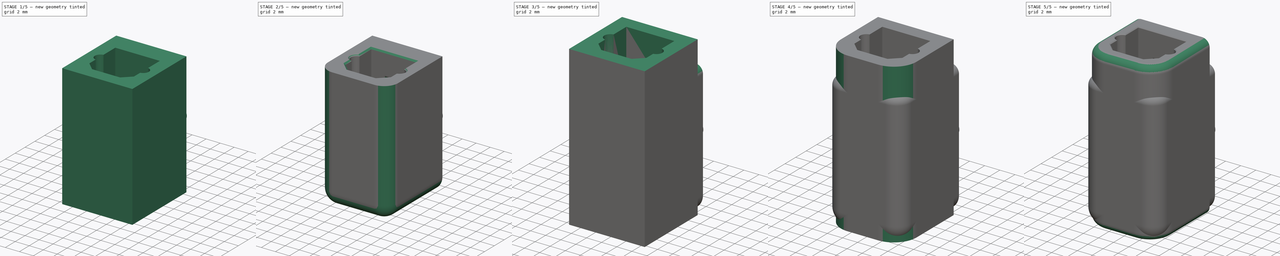
[diagram: build sequence overview — one tinted view per stage of 5, left to right]
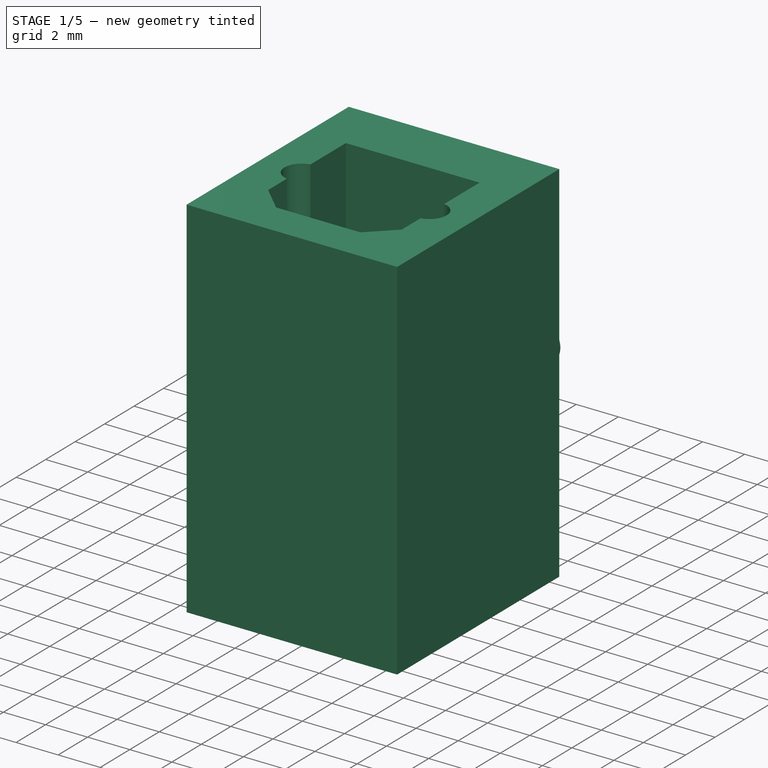
[diagram: stage 1 of 5 — iso view after this stage's code; geometry added in this stage tinted green]
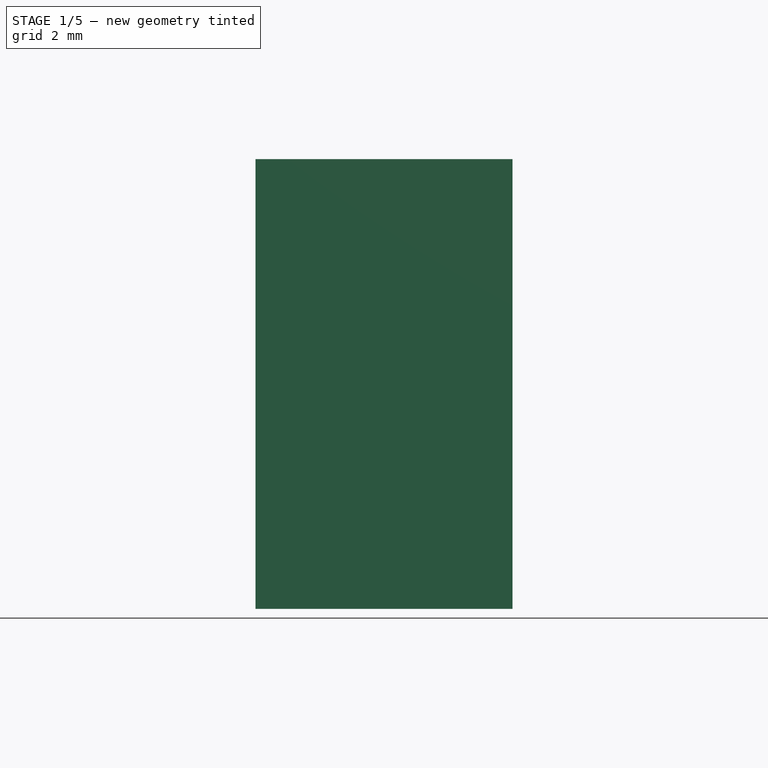
[diagram: stage 1 of 5 — front view after this stage's code; geometry added in this stage tinted green]
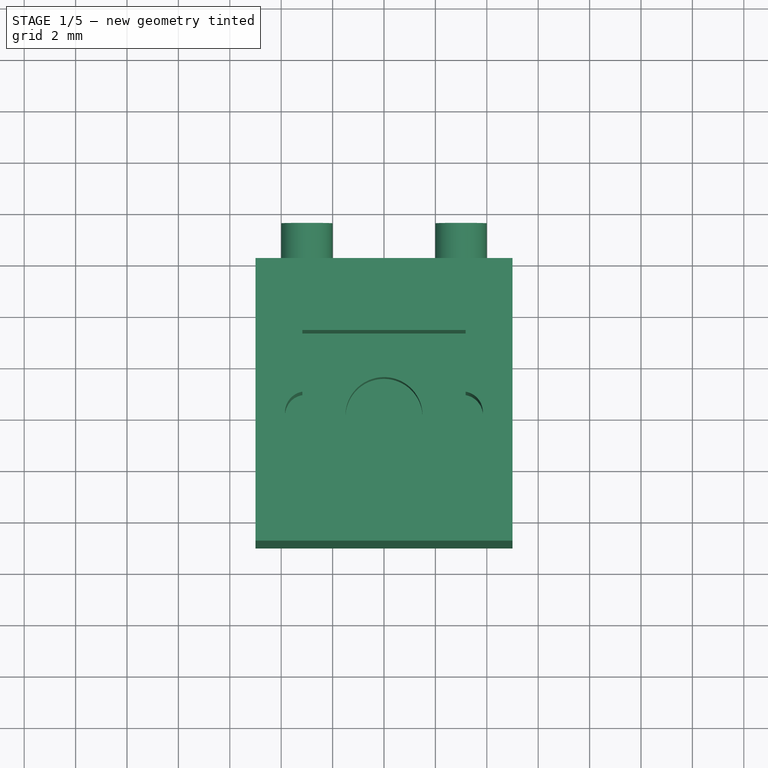
[diagram: stage 1 of 5 — top view after this stage's code; geometry added in this stage tinted green]
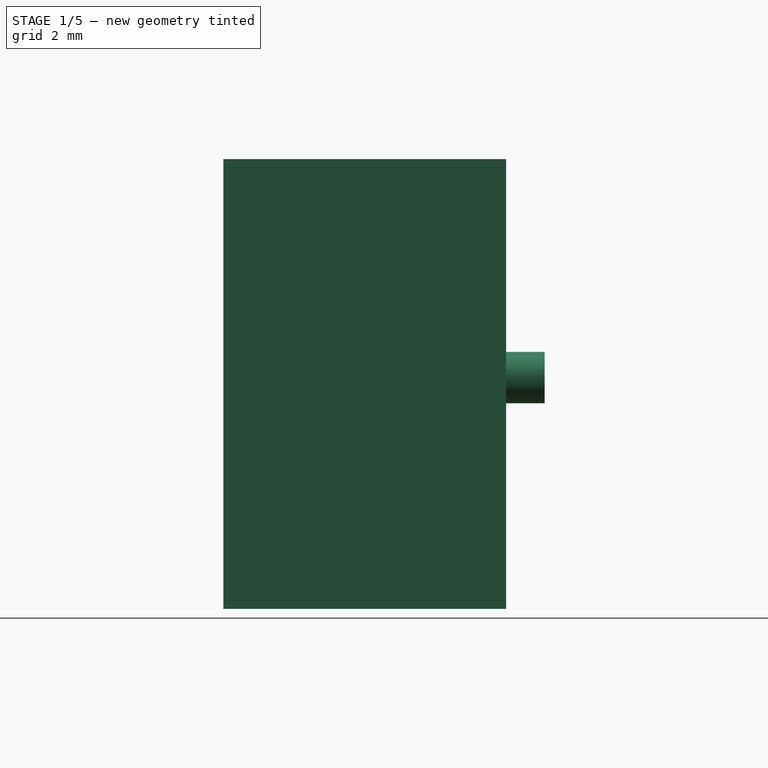
[diagram: stage 1 of 5 — right view after this stage's code; geometry added in this stage tinted green]
FCSTD DOCUMENT  (FreeCAD 1.0RUnknown)
Label: toslink-connector-opl530-led
License: All rights reserved
LicenseURL: https://en.wikipedia.org/wiki/All_rights_reserved
objects: Sketcher::SketchObject×14, PartDesign::Pocket×10, PartDesign::Fillet×7, PartDesign::Pad×4, PartDesign::Chamfer×3, PartDesign::Body×2
note: 102 computed .brp shape members not serialized (recipe doc carries the construction recipe); baked Part::Feature solids carry a one-line shape summary decoded from their .brp

FEATURE [Sketcher::SketchObject] Sketch001
  ArcFitTolerance = 1e-06
  AttachmentSupport = -> [XY_Plane001]
  FullyConstrained = true
  MakeInternals = false
  MapMode = 5
  sketch-geometry (4):
    g0: LineSegment StartX=-5 StartY=6 StartZ=0 EndX=-5 EndY=-5 EndZ=0
    g1: LineSegment StartX=-5 StartY=-5 StartZ=0 EndX=5 EndY=-5 EndZ=0
    g2: LineSegment StartX=5 StartY=-5 StartZ=0 EndX=5 EndY=6 EndZ=0
    g3: LineSegment StartX=5 StartY=6 StartZ=0 EndX=-5 EndY=6 EndZ=0
  constraints (11):
    c: Coincident(g0,g1)
    c: Coincident(g1,g2)
    c: Coincident(g2,g3)
    c: Coincident(g3,g0)
    c: Vertical(g0)
    c: Horizontal(g3)
    c: Symmetric(g1,g0,g-2)
    c: DistanceX(g1,g1) = 10
    c: Vertical(g2)
    c: Distance(g-1,g3) = 6
    c: Distance(g1,g-1) = 5
FEATURE [PartDesign::Pad] Pad
  Direction = (0,0,1)
  Length = 17.5
  Length2 = 10
  Profile = -> Sketch001
  ReferenceAxis = -> Sketch001 [N_Axis]
  Refine = true
  Suppressed = false
  Type = 0
FEATURE [Sketcher::SketchObject] Sketch002
  ArcFitTolerance = 1e-06
  AttachmentSupport = -> [Pad]
  FullyConstrained = true
  MakeInternals = false
  MapMode = 5
  Placement = pos=(0,0,17.5) rot=(0,0,1;0rad)
  sketch-geometry (12):
    g0: LineSegment StartX=3.175 StartY=3.19867 StartZ=0 EndX=-3.175 EndY=3.19867 EndZ=0
    g1: LineSegment StartX=-3.175 StartY=3.19867 StartZ=0 EndX=-3.175 EndY=0.798671 EndZ=0
    g2: LineSegment StartX=3.175 StartY=3.19867 StartZ=0 EndX=3.175 EndY=0.798671 EndZ=0
    g3: LineSegment StartX=3.175 StartY=-0.798671 StartZ=0 EndX=3.175 EndY=-2.07867 EndZ=0
    g4: LineSegment StartX=3.175 StartY=-2.07867 StartZ=0 EndX=2 EndY=-3.21133 EndZ=0
    g5: LineSegment StartX=2 StartY=-3.21133 StartZ=0 EndX=-2 EndY=-3.21133 EndZ=0
    g6: LineSegment StartX=-2 StartY=-3.21133 StartZ=0 EndX=-3.175 EndY=-2.07867 EndZ=0
    g7: LineSegment StartX=-3.175 StartY=-2.07867 StartZ=0 EndX=-3.175 EndY=-0.798671 EndZ=0
    g8: ArcOfCircle CenterX=-3.04 CenterY=-2.06965e-08 CenterZ=0 NormalX=0 NormalY=0 NormalZ=1 AngleXU=0 Radius=0.81 StartAngle=1.73824 EndAngle=4.54494
    g9: ArcOfCircle CenterX=3.04 CenterY=-2.06965e-08 CenterZ=0 NormalX=0 NormalY=0 NormalZ=1 AngleXU=0 Radius=0.81 StartAngle=4.87984 EndAngle=7.68653
    g10: LineSegment [constr] StartX=-3.175 StartY=-0.798671 StartZ=0 EndX=-3.175 EndY=0.798671 EndZ=0
    g11: LineSegment [constr] StartX=3.175 StartY=-0.798671 StartZ=0 EndX=3.175 EndY=0.798671 EndZ=0
  constraints (33):
    c: Coincident(g1,g0)
    c: Coincident(g2,g0)
    c: Coincident(g4,g3)
    c: Coincident(g5,g4)
    c: Coincident(g6,g5)
    c: Coincident(g7,g6)
    c: Coincident(g8,g1)
    c: Coincident(g8,g7)
    c: Coincident(g9,g2)
    c: Coincident(g9,g3)
    c: Equal(g8,g9)
    c: Equal(g1,g2)
    c: Equal(g3,g7)
    c: Vertical(g1)
    c: Vertical(g3)
    c: Vertical(g7)
    c: Equal(g6,g4)
    c: Symmetric(g4,g5,g-2)
    c: Symmetric(g0,g0,g-2)
    c: DistanceX(g0,g0) = 6.35
    c: DistanceX(g5,g5) = 4
    c: DistanceY(g4,g0) = 6.41
    c: Radius(g8) = 0.81
    c: DistanceY(g1,g1) = 2.4
    c: DistanceY(g7,g7) = 1.28
    c: Symmetric(g8,g9,g-2)
    c: Distance(g8,g-1) = 3.04
    c: DistanceX(g-1,g9) = 3.04
    c: Coincident(g10,g7)
    c: Coincident(g10,g1)
    c: Vertical(g10)
    c: Coincident(g11,g3)
    c: Coincident(g11,g2)
FEATURE [PartDesign::Pocket] Pocket
  BaseFeature = -> Pad
  Direction = (0,0,-1)
  Length = 7.7
  Length2 = 5
  Profile = -> Sketch002
  ReferenceAxis = -> Sketch002 [N_Axis]
  Refine = true
  Suppressed = false
  Type = 0
FEATURE [Sketcher::SketchObject] Sketch003
  ArcFitTolerance = 1e-06
  AttachmentSupport = -> [Pocket]
  FullyConstrained = true
  MakeInternals = false
  MapMode = 5
  Placement = pos=(0,0,9.8) rot=(0,0,1;0rad)
  sketch-geometry (1):
    g0: Circle CenterX=0 CenterY=0 CenterZ=0 NormalX=0 NormalY=0 NormalZ=1 AngleXU=0 Radius=1.5
  constraints (2):
    c: Diameter(g0) = 3
    c: Coincident(g0,g-1)
FEATURE [PartDesign::Pocket] Pocket001
  BaseFeature = -> Pocket
  Direction = (0,0,-1)
  Length = 4
  Length2 = 5
  Profile = -> Sketch003
  ReferenceAxis = -> Sketch003 [N_Axis]
  Refine = true
  Suppressed = false
  Type = 0
FEATURE [Sketcher::SketchObject] Sketch004
  ArcFitTolerance = 1e-06
  AttachmentSupport = -> [Pocket001]
  ExternalGeometry = -> [Pocket001]
  FullyConstrained = true
  MakeInternals = false
  MapMode = 5
  Placement = pos=(0,6,0) rot=(0,0.707107,0.707107;3.14159rad)
  sketch-geometry (9):
    g0: LineSegment StartX=-2.5 StartY=3.2 StartZ=0 EndX=2.5 EndY=3.2 EndZ=0
    g1: LineSegment StartX=2.5 StartY=3.2 StartZ=0 EndX=2.5 EndY=5 EndZ=0
    g2: LineSegment StartX=2.5 StartY=5 StartZ=0 EndX=1.5 EndY=5 EndZ=0
    g3: LineSegment StartX=-2.5 StartY=5 StartZ=0 EndX=-2.5 EndY=3.2 EndZ=0
    g4: GeomPoint [constr] X=0 Y=4.1 Z=0
    g5: LineSegment StartX=-1.5 StartY=5 StartZ=0 EndX=-2.5 EndY=5 EndZ=0
    g6: LineSegment StartX=1.5 StartY=5 StartZ=0 EndX=1.5 EndY=5.8 EndZ=0
    g7: LineSegment StartX=1.5 StartY=5.8 StartZ=0 EndX=-1.5 EndY=5.8 EndZ=0
    g8: LineSegment StartX=-1.5 StartY=5.8 StartZ=0 EndX=-1.5 EndY=5 EndZ=0
  constraints (25):
    c: Coincident(g0,g1)
    c: Coincident(g1,g2)
    c: Coincident(g5,g3)
    c: Coincident(g3,g0)
    c: Horizontal(g0)
    c: Horizontal(g2)
    c: Vertical(g1)
    c: Vertical(g3)
    c: Symmetric(g2,g0,g4)
    c: PointOnObject(g4,g-2)
    c: DistanceY(g1,g1) = 1.8
    c: DistanceX(g0,g0) = 5
    c: Horizontal(g5)
    c: Coincident(g6,g7)
    c: Coincident(g7,g8)
    c: Horizontal(g7)
    c: Vertical(g6)
    c: Vertical(g8)
    c: PointOnObject(g6,g-3)
    c: Coincident(g6,g2)
    c: Coincident(g8,g5)
    c: Equal(g1,g3)
    c: Equal(g2,g5)
    c: Distance(g0,g7) = 2.6
    c: Equal(g7,g-3)
FEATURE [PartDesign::Pocket] Pocket002
  BaseFeature = -> Pocket001
  Direction = (0,-1,2e-16)
  Length = 7.5
  Length2 = 5
  Profile = -> Sketch004
  ReferenceAxis = -> Sketch004 [N_Axis]
  Refine = true
  Suppressed = false
  Type = 0
FEATURE [Sketcher::SketchObject] Sketch005
  ArcFitTolerance = 1e-06
  AttachmentSupport = -> [Pocket002]
  FullyConstrained = true
  MakeInternals = false
  MapMode = 5
  Placement = pos=(0,6,0) rot=(0,0.707107,0.707107;3.14159rad)
  sketch-geometry (2):
    g0: Circle CenterX=-3 CenterY=9 CenterZ=0 NormalX=0 NormalY=0 NormalZ=1 AngleXU=0 Radius=1
    g1: Circle CenterX=3 CenterY=9 CenterZ=0 NormalX=0 NormalY=0 NormalZ=1 AngleXU=0 Radius=1
  constraints (5):
    c: Diameter(g0) = 2
    c: Diameter(g1) = 2
    c: Symmetric(g1,g0,g-2)
    c: Distance(g1,g-2) = 3
    c: DistanceY(g-1,g1) = 9
FEATURE [PartDesign::Pad] Pad001
  BaseFeature = -> Pocket002
  Direction = (0,1,-2e-16)
  Length = 1.5
  Length2 = 10
  Profile = -> Sketch005
  ReferenceAxis = -> Sketch005 [N_Axis]
  Refine = true
  Suppressed = false
  Type = 0
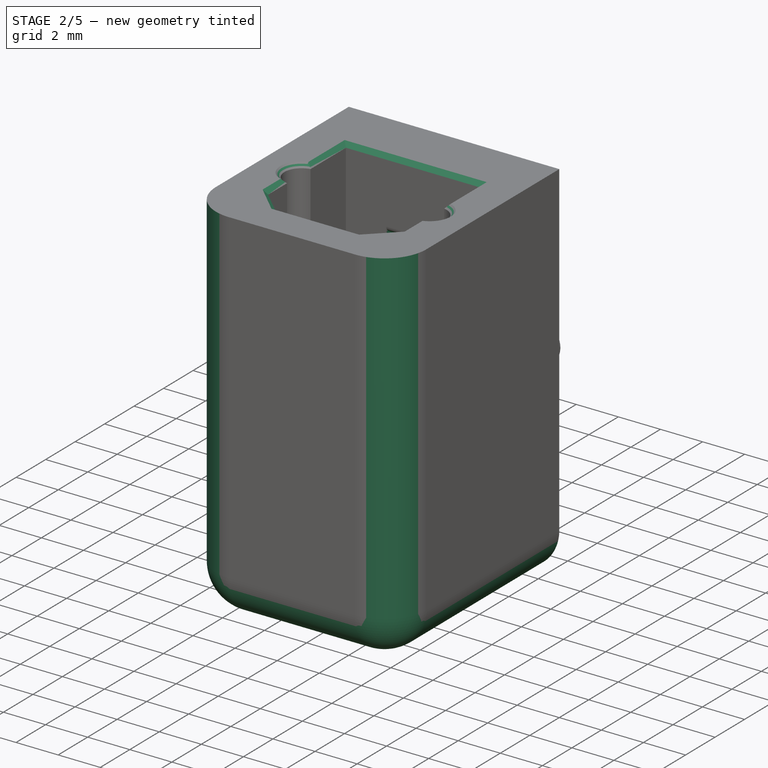
[diagram: stage 2 of 5 — iso view after this stage's code; geometry added in this stage tinted green]
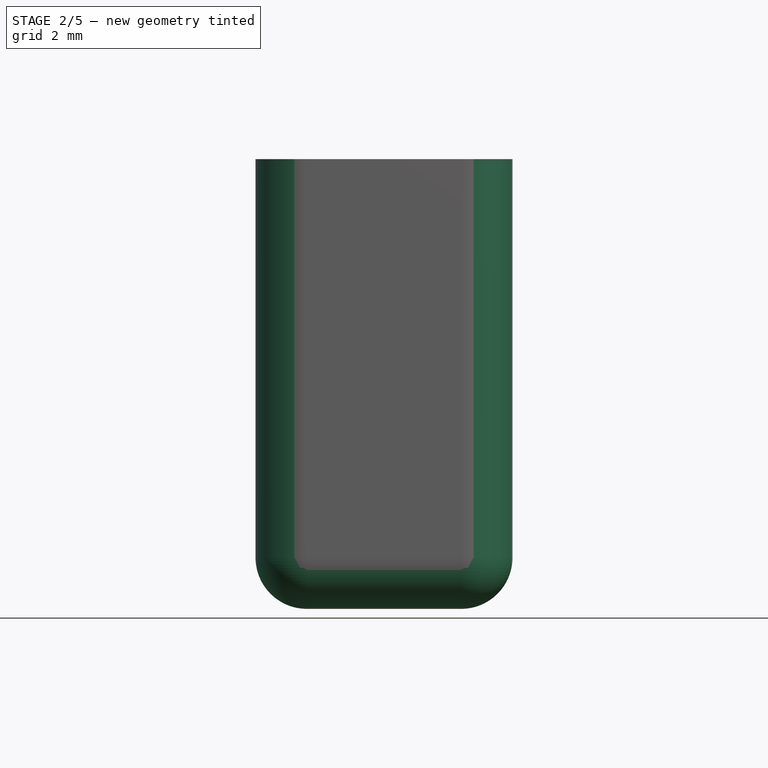
[diagram: stage 2 of 5 — front view after this stage's code; geometry added in this stage tinted green]
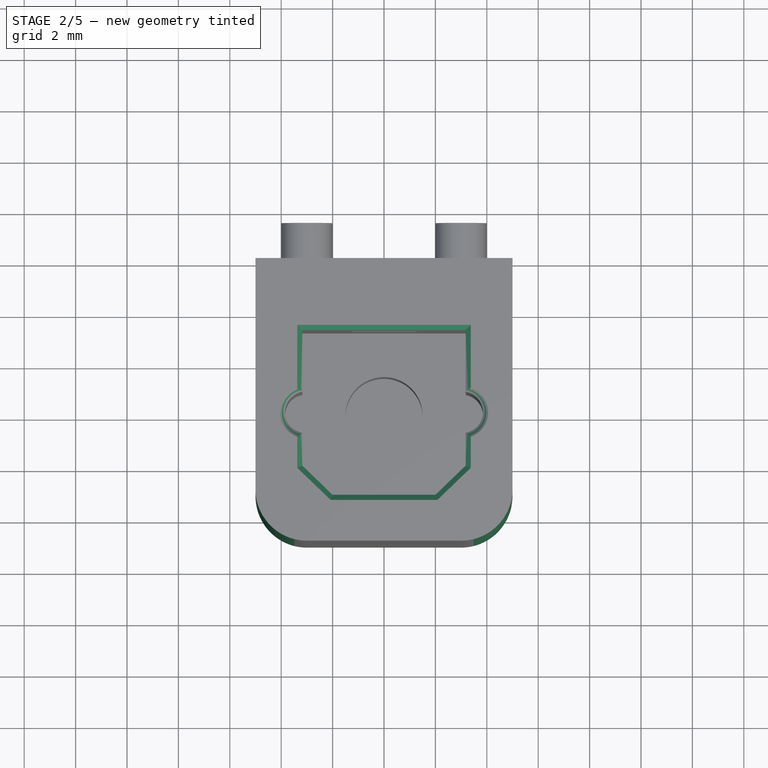
[diagram: stage 2 of 5 — top view after this stage's code; geometry added in this stage tinted green]
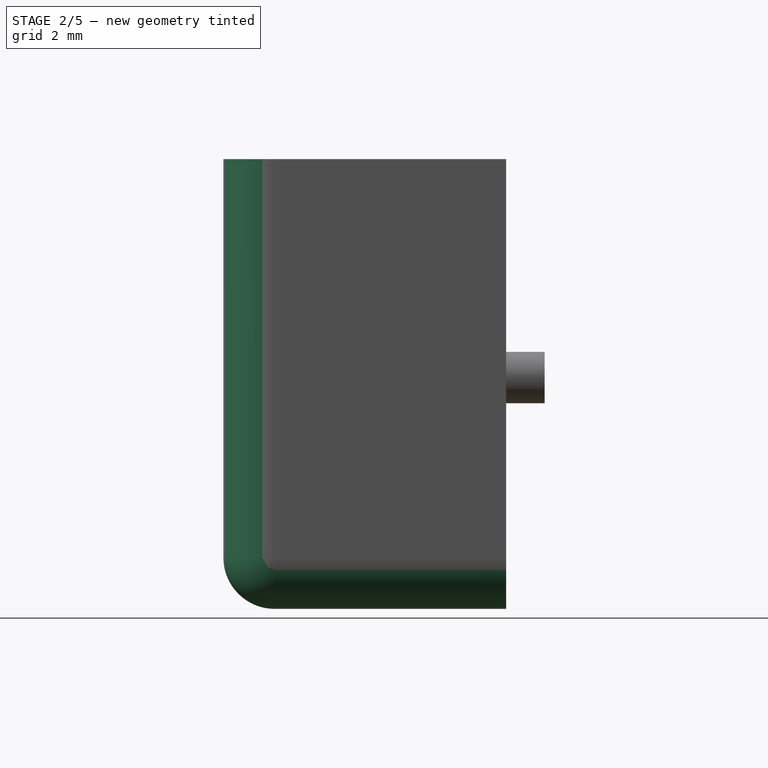
[diagram: stage 2 of 5 — right view after this stage's code; geometry added in this stage tinted green]
FEATURE [PartDesign::Fillet] Fillet
  Base = -> Pad001 [Edge2,Edge18,Edge19,Edge3,Edge21]
  BaseFeature = -> Pad001
  Radius = 2
  Refine = true
  SupportTransform = false
  Suppressed = false
  UseAllEdges = false
FEATURE [PartDesign::Body] Body002  label="Transmitter"
  AllowCompound = false
  Group = -> [Sketch006,Pad002,Sketch007,Pocket003,Sketch008,Pocket004,Sketch010,Pad003,Sketch,Pocket005,Fillet001,Chamfer,Sketch013,Pocket006,Sketch015,Pocket007,Fillet002,Chamfer002,Fillet003]
  Origin = -> Origin002
  Tip = -> Fillet003
FEATURE [Sketcher::SketchObject] Sketch016
  ArcFitTolerance = 1e-06
  FullyConstrained = true
  MakeInternals = false
  MapMode = 5
  Placement = pos=(0,3.19867,0) rot=(1,0,0;1.5708rad)
  sketch-geometry (4):
    g0: LineSegment StartX=-1.25 StartY=14.15 StartZ=0 EndX=-1.25 EndY=13.15 EndZ=0
    g1: LineSegment StartX=-1.25 StartY=13.15 StartZ=0 EndX=1.25 EndY=13.15 EndZ=0
    g2: LineSegment StartX=1.25 StartY=13.15 StartZ=0 EndX=1.25 EndY=14.15 EndZ=0
    g3: LineSegment StartX=1.25 StartY=14.15 StartZ=0 EndX=-1.25 EndY=14.15 EndZ=0
  constraints (11):
    c: Coincident(g0,g1)
    c: Coincident(g1,g2)
    c: Coincident(g2,g3)
    c: Coincident(g3,g0)
    c: Vertical(g0)
    c: Vertical(g2)
    c: Horizontal(g1)
    c: Symmetric(g2,g0,g-2)
    c: DistanceY(g2,g2) = 1
    c: DistanceX(g3,g3) = 2.5
    c: Distance(g-3,g1) = 3.35
FEATURE [PartDesign::Pocket] Pocket008
  BaseFeature = -> Fillet
  Direction = (0,1,-2e-16)
  Length = 0.5
  Length2 = 5
  Profile = -> Sketch016
  ReferenceAxis = -> Sketch016 [N_Axis]
  Refine = true
  Suppressed = false
  Type = 0
FEATURE [Sketcher::SketchObject] Sketch017
  ArcFitTolerance = 1e-06
  AttachmentSupport = -> [Pocket008]
  ExternalGeometry = -> [Pocket008]
  FullyConstrained = true
  MakeInternals = false
  MapMode = 5
  Placement = pos=(0,-3.21133,0) rot=(0,0.707107,0.707107;3.14159rad)
  sketch-geometry (4):
    g0: LineSegment StartX=-1.25 StartY=14.15 StartZ=0 EndX=-1.25 EndY=13.15 EndZ=0
    g1: LineSegment StartX=-1.25 StartY=13.15 StartZ=0 EndX=1.25 EndY=13.15 EndZ=0
    g2: LineSegment StartX=1.25 StartY=13.15 StartZ=0 EndX=1.25 EndY=14.15 EndZ=0
    g3: LineSegment StartX=1.25 StartY=14.15 StartZ=0 EndX=-1.25 EndY=14.15 EndZ=0
  constraints (10):
    c: Coincident(g0,g1)
    c: Coincident(g1,g2)
    c: Coincident(g2,g3)
    c: Coincident(g3,g0)
    c: Vertical(g0)
    c: Vertical(g2)
    c: Horizontal(g1)
    c: Horizontal(g3)
    c: Coincident(g0,g-6)
    c: Coincident(g1,g-5)
FEATURE [PartDesign::Pocket] Pocket009
  BaseFeature = -> Pocket008
  Direction = (0,-1,2e-16)
  Length = 0.5
  Length2 = 5
  Profile = -> Sketch017
  ReferenceAxis = -> Sketch017 [N_Axis]
  Refine = true
  Suppressed = false
  Type = 0
FEATURE [PartDesign::Fillet] Fillet004
  Base = -> Pocket009 [Edge94,Edge92,Edge79,Edge77]
  BaseFeature = -> Pocket009
  Radius = 0.3
  Refine = true
  SupportTransform = false
  Suppressed = false
  UseAllEdges = false
FEATURE [PartDesign::Chamfer] Chamfer003
  Angle = 45
  Base = -> Fillet004 [Edge40,Edge39,Edge38,Edge37,Edge36,Edge35,Edge10,Edge26,Edge34,Edge41]
  BaseFeature = -> Fillet004
  ChamferType = 0
  FlipDirection = false
  Refine = true
  Size = 0.2
  Size2 = 1
  SupportTransform = false
  Suppressed = false
  UseAllEdges = false
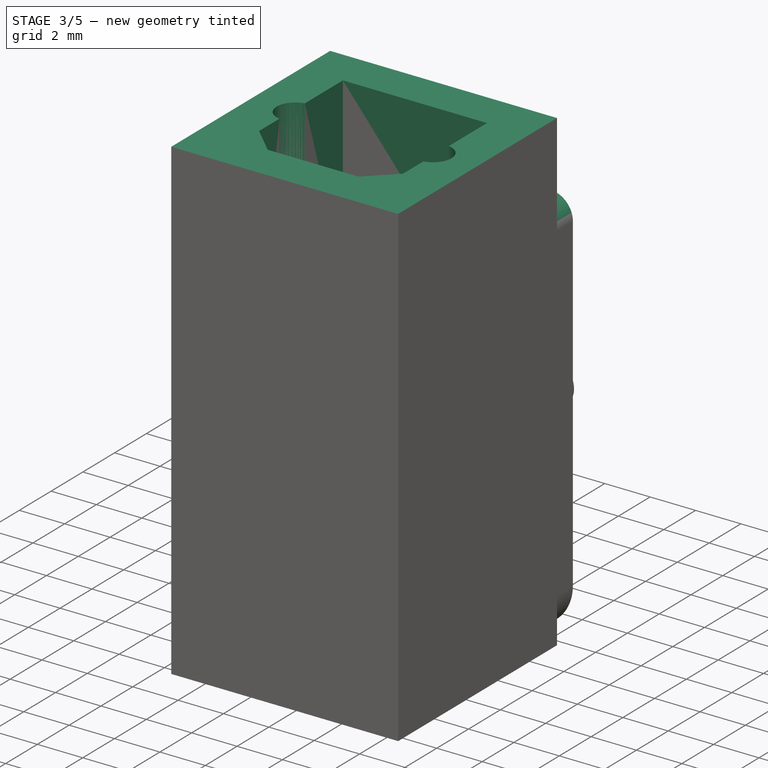
[diagram: stage 3 of 5 — iso view after this stage's code; geometry added in this stage tinted green]
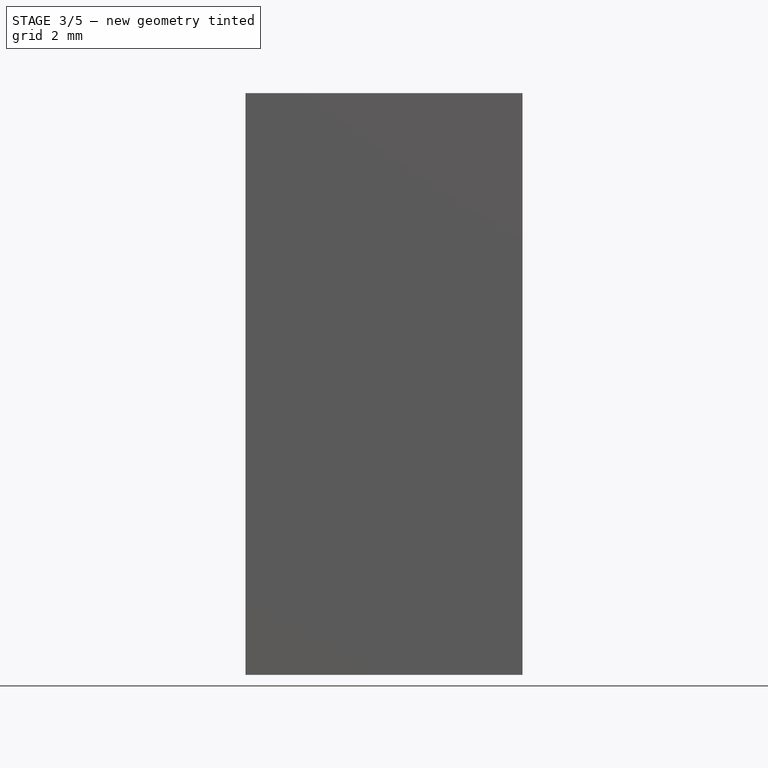
[diagram: stage 3 of 5 — front view after this stage's code; geometry added in this stage tinted green]
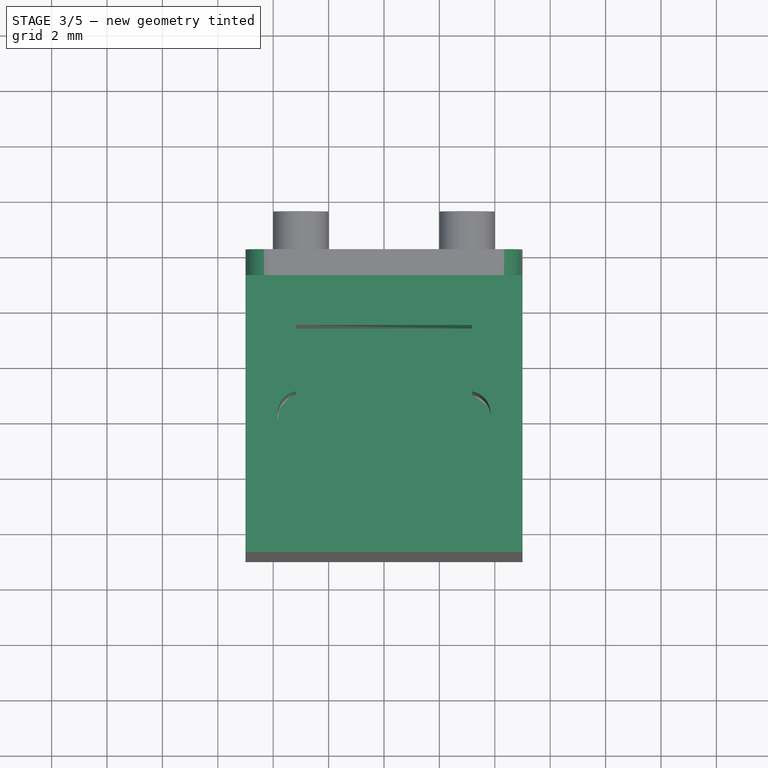
[diagram: stage 3 of 5 — top view after this stage's code; geometry added in this stage tinted green]
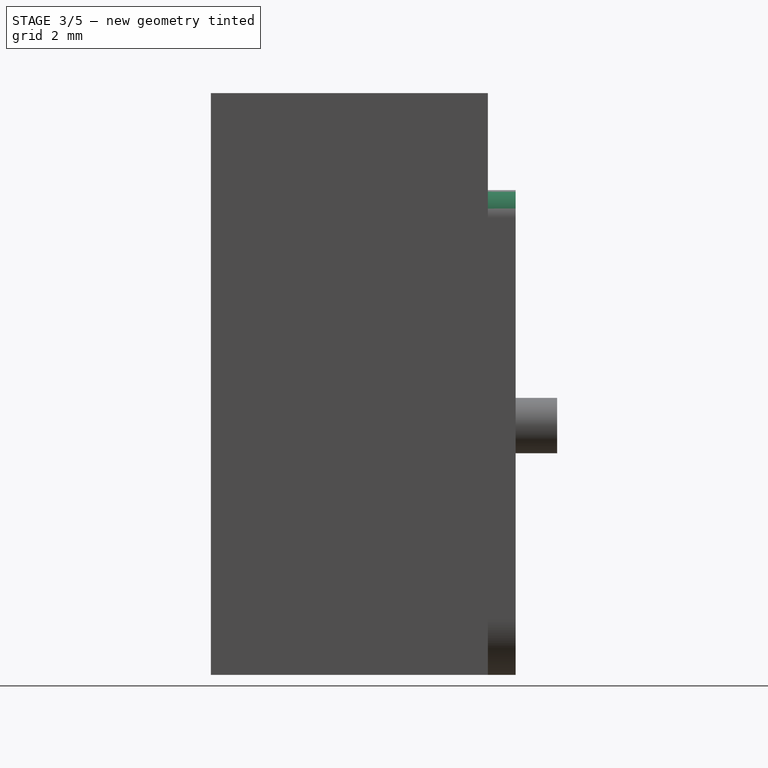
[diagram: stage 3 of 5 — right view after this stage's code; geometry added in this stage tinted green]
FEATURE [Sketcher::SketchObject] Sketch006
  ArcFitTolerance = 1e-06
  AttachmentSupport = -> [XY_Plane002]
  FullyConstrained = true
  MakeInternals = false
  MapMode = 5
  sketch-geometry (4):
    g0: LineSegment StartX=-5 StartY=5 StartZ=0 EndX=-5 EndY=-5 EndZ=0
    g1: LineSegment StartX=-5 StartY=-5 StartZ=0 EndX=5 EndY=-5 EndZ=0
    g2: LineSegment StartX=5 StartY=-5 StartZ=0 EndX=5 EndY=5 EndZ=0
    g3: LineSegment StartX=5 StartY=5 StartZ=0 EndX=-5 EndY=5 EndZ=0
  constraints (10):
    c: Coincident(g0,g1)
    c: Coincident(g1,g2)
    c: Coincident(g2,g3)
    c: Coincident(g3,g0)
    c: Vertical(g0)
    c: Horizontal(g3)
    c: Symmetric(g1,g0,g-2)
    c: Symmetric(g2,g1,g-1)
    c: DistanceX(g1,g1) = 10
    c: DistanceY(g2,g2) = 10
FEATURE [PartDesign::Pad] Pad002
  Direction = (0,0,1)
  Length = 21
  Length2 = 10
  Profile = -> Sketch006
  ReferenceAxis = -> Sketch006 [N_Axis]
  Refine = true
  Suppressed = false
  Type = 0
FEATURE [Sketcher::SketchObject] Sketch007
  ArcFitTolerance = 1e-06
  AttachmentSupport = -> [Pad002]
  FullyConstrained = true
  MakeInternals = false
  MapMode = 5
  Placement = pos=(0,0,21) rot=(0,0,1;0rad)
  sketch-geometry (12):
    g0: LineSegment StartX=3.175 StartY=3.19867 StartZ=0 EndX=-3.175 EndY=3.19867 EndZ=0
    g1: LineSegment StartX=-3.175 StartY=3.19867 StartZ=0 EndX=-3.175 EndY=0.798671 EndZ=0
    g2: LineSegment StartX=3.175 StartY=3.19867 StartZ=0 EndX=3.175 EndY=0.798671 EndZ=0
    g3: LineSegment StartX=3.175 StartY=-0.798671 StartZ=0 EndX=3.175 EndY=-2.07867 EndZ=0
    g4: LineSegment StartX=3.175 StartY=-2.07867 StartZ=0 EndX=2 EndY=-3.21133 EndZ=0
    g5: LineSegment StartX=2 StartY=-3.21133 StartZ=0 EndX=-2 EndY=-3.21133 EndZ=0
    g6: LineSegment StartX=-2 StartY=-3.21133 StartZ=0 EndX=-3.175 EndY=-2.07867 EndZ=0
    g7: LineSegment StartX=-3.175 StartY=-2.07867 StartZ=0 EndX=-3.175 EndY=-0.798671 EndZ=0
    g8: ArcOfCircle CenterX=-3.04 CenterY=-2.06965e-08 CenterZ=0 NormalX=0 NormalY=0 NormalZ=1 AngleXU=0 Radius=0.81 StartAngle=1.73824 EndAngle=4.54494
    g9: ArcOfCircle CenterX=3.04 CenterY=-2.06965e-08 CenterZ=0 NormalX=0 NormalY=0 NormalZ=1 AngleXU=0 Radius=0.81 StartAngle=4.87984 EndAngle=7.68653
    g10: LineSegment [constr] StartX=-3.175 StartY=-0.798671 StartZ=0 EndX=-3.175 EndY=0.798671 EndZ=0
    g11: LineSegment [constr] StartX=3.175 StartY=-0.798671 StartZ=0 EndX=3.175 EndY=0.798671 EndZ=0
  constraints (33):
    c: Coincident(g1,g0)
    c: Coincident(g2,g0)
    c: Coincident(g4,g3)
    c: Coincident(g5,g4)
    c: Coincident(g6,g5)
    c: Coincident(g7,g6)
    c: Coincident(g8,g1)
    c: Coincident(g8,g7)
    c: Coincident(g9,g2)
    c: Coincident(g9,g3)
    c: Equal(g8,g9)
    c: Equal(g1,g2)
    c: Equal(g3,g7)
    c: Vertical(g1)
    c: Vertical(g3)
    c: Vertical(g7)
    c: Equal(g6,g4)
    c: Symmetric(g4,g5,g-2)
    c: Symmetric(g0,g0,g-2)
    c: DistanceX(g0,g0) = 6.35
    c: DistanceX(g5,g5) = 4
    c: DistanceY(g4,g0) = 6.41
    c: Radius(g8) = 0.81
    c: DistanceY(g1,g1) = 2.4
    c: DistanceY(g7,g7) = 1.28
    c: Symmetric(g8,g9,g-2)
    c: Distance(g8,g-1) = 3.04
    c: DistanceX(g-1,g9) = 3.04
    c: Coincident(g10,g7)
    c: Coincident(g10,g1)
    c: Vertical(g10)
    c: Coincident(g11,g3)
    c: Coincident(g11,g2)
FEATURE [PartDesign::Pocket] Pocket003
  BaseFeature = -> Pad002
  Direction = (0,0,-1)
  Length = 7.7
  Length2 = 5
  Profile = -> Sketch007
  ReferenceAxis = -> Sketch007 [N_Axis]
  Refine = true
  Suppressed = false
  Type = 0
FEATURE [PartDesign::Fillet] Fillet005
  Base = -> Chamfer003 [Edge54,Edge55,Edge57,Edge59,Edge58]
  BaseFeature = -> Chamfer003
  Radius = 1
  Refine = true
  SupportTransform = false
  Suppressed = false
  UseAllEdges = false
FEATURE [PartDesign::Fillet] Fillet006
  Base = -> Fillet005 [Edge143,Edge140,Edge141,Edge145,Edge150,Edge154]
  BaseFeature = -> Fillet005
  Radius = 0.25
  Refine = true
  SupportTransform = false
  Suppressed = false
  UseAllEdges = false
FEATURE [PartDesign::Body] Body001  label="Receiver"
  AllowCompound = false
  Group = -> [Sketch001,Pad,Sketch002,Pocket,Sketch003,Pocket001,Sketch004,Pocket002,Sketch005,Pad001,Fillet,Sketch016,Pocket008,Sketch017,Pocket009,Fillet004,Chamfer003,Fillet005,Fillet006]
  Origin = -> Origin001
  Tip = -> Fillet006
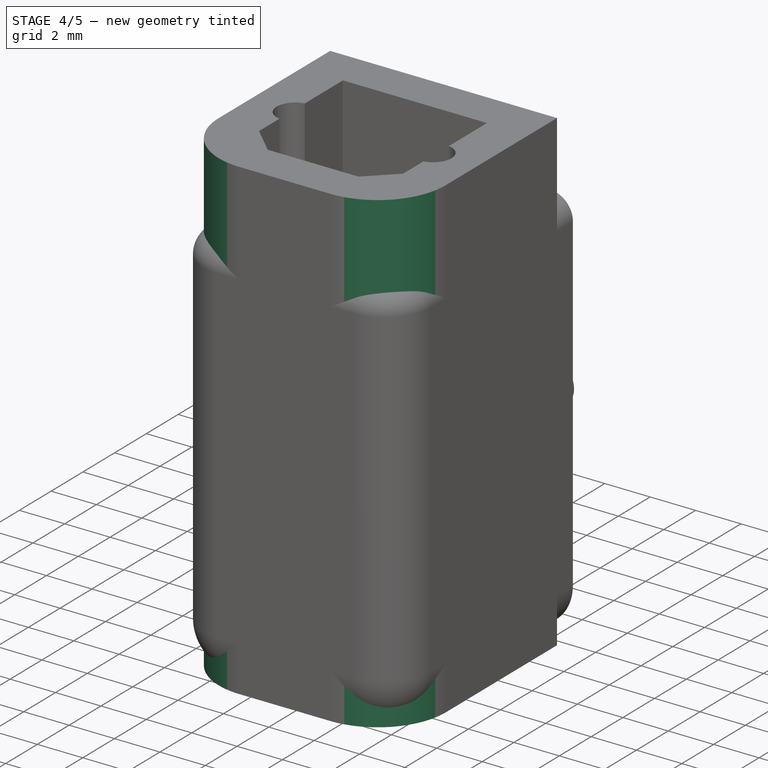
[diagram: stage 4 of 5 — iso view after this stage's code; geometry added in this stage tinted green]
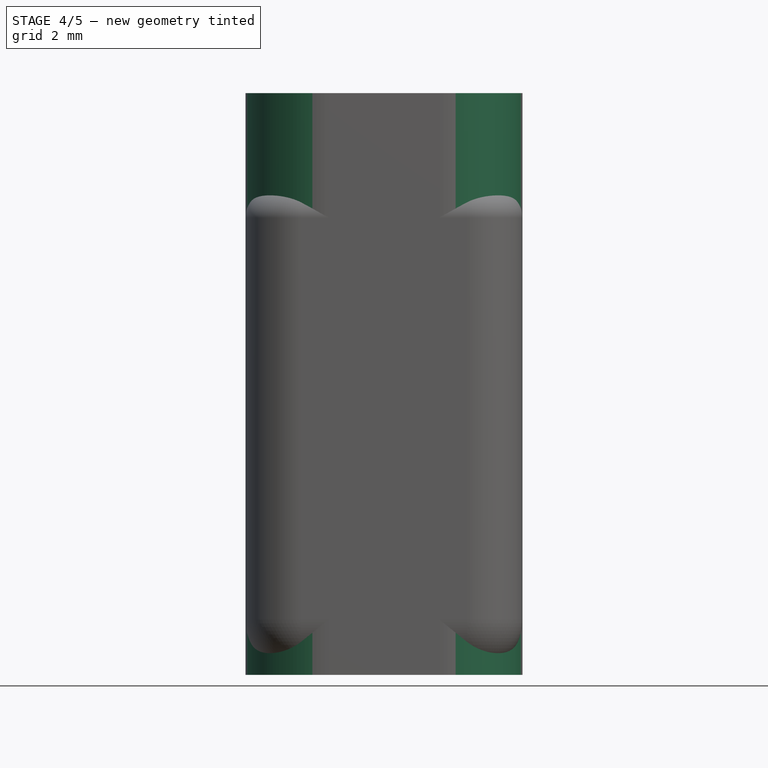
[diagram: stage 4 of 5 — front view after this stage's code; geometry added in this stage tinted green]
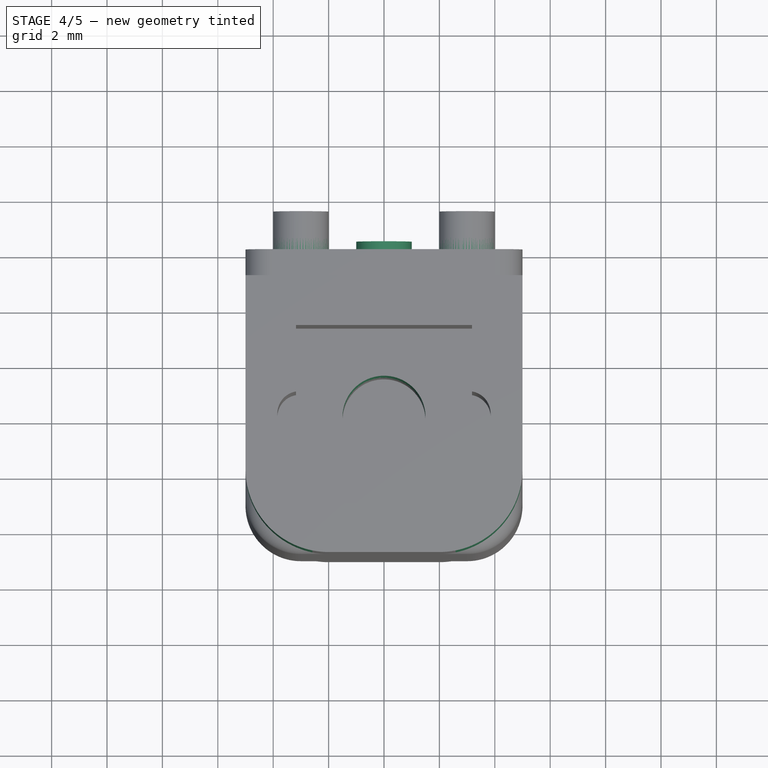
[diagram: stage 4 of 5 — top view after this stage's code; geometry added in this stage tinted green]
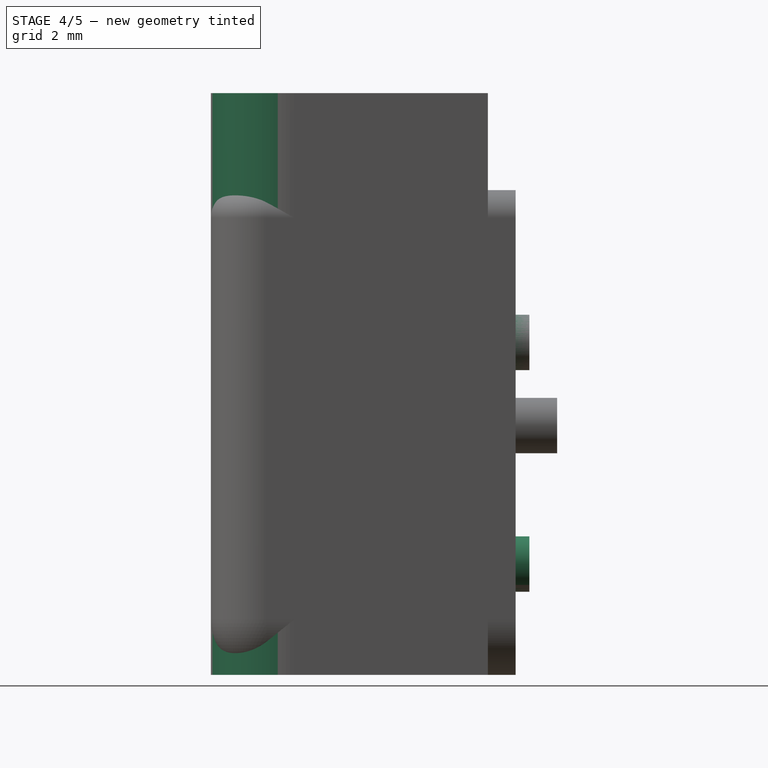
[diagram: stage 4 of 5 — right view after this stage's code; geometry added in this stage tinted green]
FEATURE [Sketcher::SketchObject] Sketch008
  ArcFitTolerance = 1e-06
  AttachmentSupport = -> [Pocket003]
  FullyConstrained = true
  MakeInternals = false
  MapMode = 5
  Placement = pos=(0,0,13.3) rot=(0,0,1;0rad)
  sketch-geometry (1):
    g0: Circle CenterX=0 CenterY=0 CenterZ=0 NormalX=0 NormalY=0 NormalZ=1 AngleXU=0 Radius=1.5
  constraints (2):
    c: Diameter(g0) = 3
    c: Coincident(g0,g-1)
FEATURE [PartDesign::Pocket] Pocket004
  BaseFeature = -> Pocket003
  Direction = (0,0,-1)
  Length = 5
  Length2 = 5
  Profile = -> Sketch008
  ReferenceAxis = -> Sketch008 [N_Axis]
  Refine = true
  Suppressed = false
  Type = 0
FEATURE [Sketcher::SketchObject] Sketch010
  ArcFitTolerance = 1e-06
  FullyConstrained = true
  MakeInternals = false
  MapMode = 5
  Placement = pos=(0,5,0) rot=(0,0.707107,0.707107;3.14159rad)
  sketch-geometry (3):
    g0: Circle CenterX=-3 CenterY=12 CenterZ=0 NormalX=0 NormalY=0 NormalZ=1 AngleXU=0 Radius=1
    g1: Circle CenterX=3 CenterY=12 CenterZ=0 NormalX=0 NormalY=0 NormalZ=1 AngleXU=0 Radius=1
    g2: Circle CenterX=0 CenterY=4 CenterZ=0 NormalX=0 NormalY=0 NormalZ=1 AngleXU=0 Radius=1
  constraints (8):
    c: Diameter(g0) = 2
    c: Diameter(g1) = 2
    c: Symmetric(g1,g0,g-2)
    c: Distance(g1,g-2) = 3
    c: DistanceY(g-1,g1) = 12
    c: Diameter(g2) = 2
    c: PointOnObject(g2,g-2)
    c: DistanceY(g-1,g2) = 4
FEATURE [PartDesign::Pad] Pad003
  BaseFeature = -> Pocket004
  Direction = (1e-16,1,-2e-16)
  Length = 1.5
  Length2 = 10
  Profile = -> Sketch010
  ReferenceAxis = -> Sketch010 [N_Axis]
  Refine = true
  Suppressed = false
  Type = 0
FEATURE [Sketcher::SketchObject] Sketch
  ArcFitTolerance = 1e-06
  AttachmentSupport = -> [Pad003]
  FullyConstrained = true
  MakeInternals = false
  MapMode = 5
  Placement = pos=(0,0,0) rot=(1,0,0;3.14159rad)
  sketch-geometry (1):
    g0: Circle CenterX=0 CenterY=0 CenterZ=0 NormalX=0 NormalY=0 NormalZ=1 AngleXU=0 Radius=2.6
  constraints (2):
    c: Coincident(g0,g-1)
    c: Diameter(g0) = 5.2
FEATURE [PartDesign::Pocket] Pocket005
  BaseFeature = -> Pad003
  Direction = (0,0,1)
  Length = 9
  Length2 = 5
  Profile = -> Sketch
  ReferenceAxis = -> Sketch [N_Axis]
  Refine = true
  Suppressed = false
  Type = 0
FEATURE [PartDesign::Fillet] Fillet001
  Base = -> Pocket005 [Edge2,Edge11]
  BaseFeature = -> Pocket005
  Radius = 3
  Refine = true
  SupportTransform = false
  Suppressed = false
  UseAllEdges = false
FEATURE [PartDesign::Chamfer] Chamfer
  Angle = 45
  Base = -> Fillet001 [Edge10]
  BaseFeature = -> Fillet001
  ChamferType = 1
  FlipDirection = false
  Refine = true
  Size = 1
  Size2 = 2
  SupportTransform = false
  Suppressed = false
  UseAllEdges = false
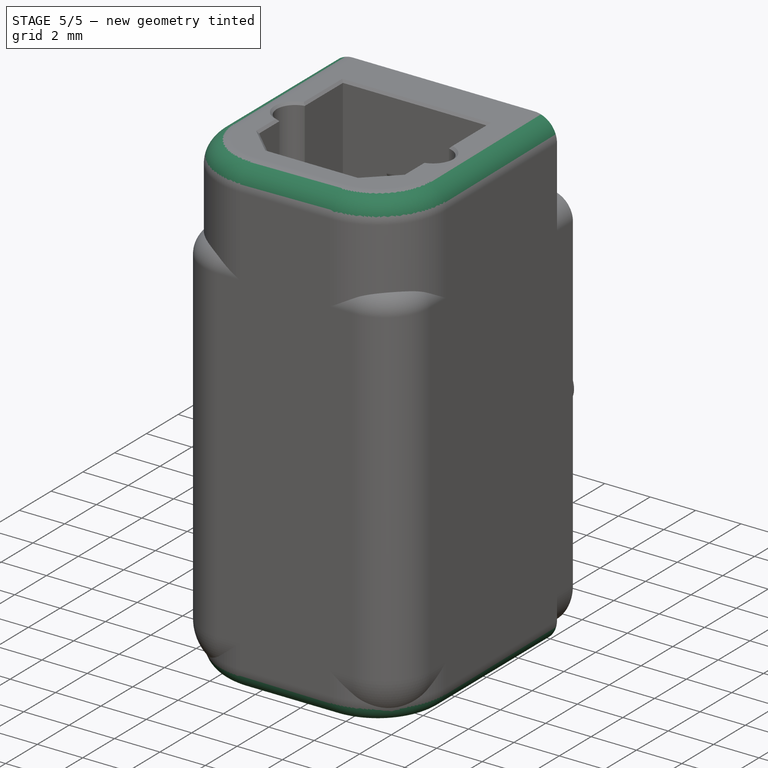
[diagram: stage 5 of 5 — iso view after this stage's code; geometry added in this stage tinted green]
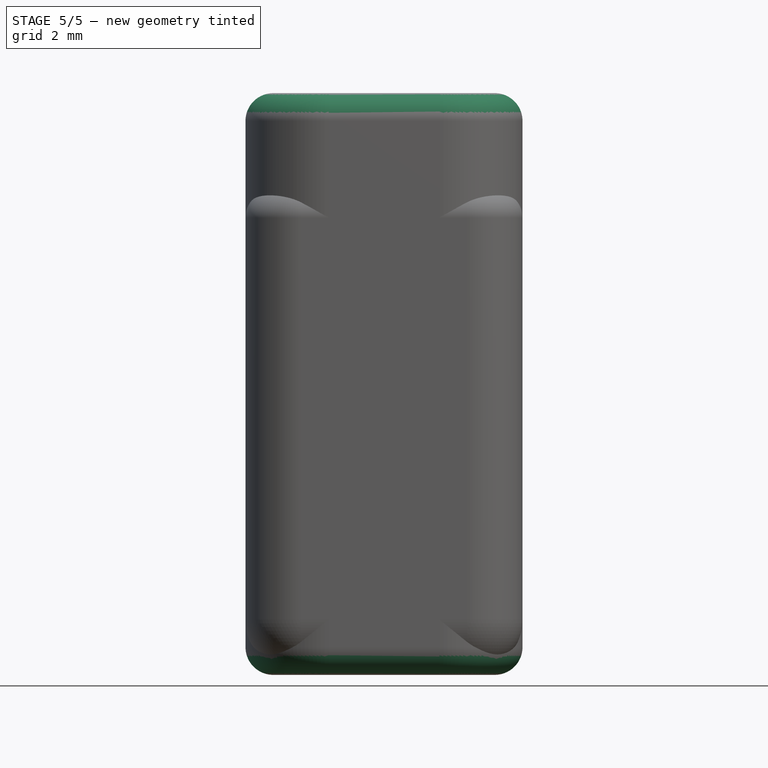
[diagram: stage 5 of 5 — front view after this stage's code; geometry added in this stage tinted green]
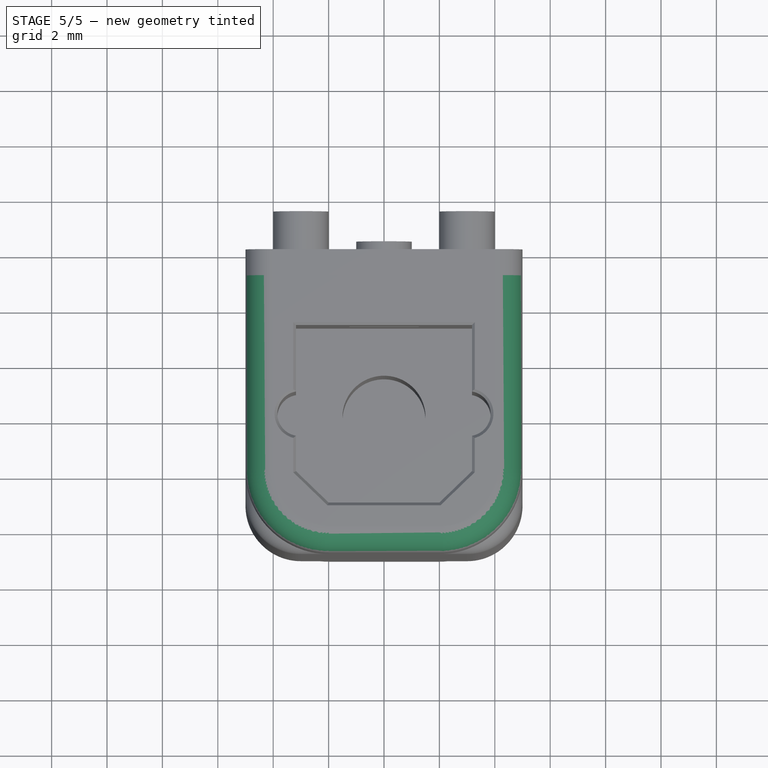
[diagram: stage 5 of 5 — top view after this stage's code; geometry added in this stage tinted green]
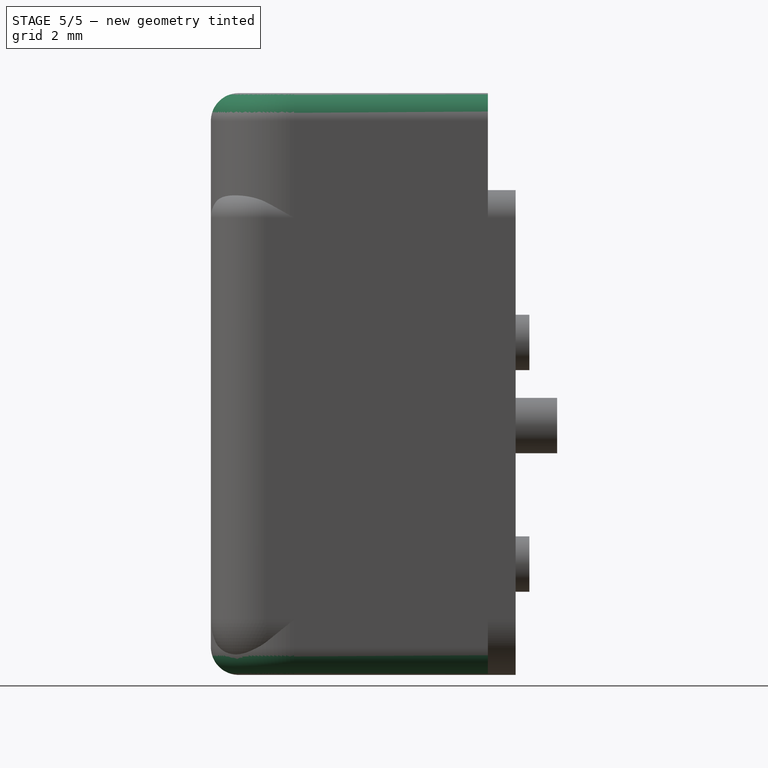
[diagram: stage 5 of 5 — right view after this stage's code; geometry added in this stage tinted green]
FEATURE [Sketcher::SketchObject] Sketch013
  ArcFitTolerance = 1e-06
  AttachmentSupport = -> [Chamfer]
  ExternalGeometry = -> [Chamfer]
  FullyConstrained = true
  MakeInternals = false
  MapMode = 5
  Placement = pos=(0,3.19867,0) rot=(1,0,0;1.5708rad)
  sketch-geometry (4):
    g0: LineSegment StartX=-1.25 StartY=17.65 StartZ=0 EndX=-1.25 EndY=16.65 EndZ=0
    g1: LineSegment StartX=-1.25 StartY=16.65 StartZ=0 EndX=1.25 EndY=16.65 EndZ=0
    g2: LineSegment StartX=1.25 StartY=16.65 StartZ=0 EndX=1.25 EndY=17.65 EndZ=0
    g3: LineSegment StartX=1.25 StartY=17.65 StartZ=0 EndX=-1.25 EndY=17.65 EndZ=0
  constraints (11):
    c: Coincident(g0,g1)
    c: Coincident(g1,g2)
    c: Coincident(g2,g3)
    c: Coincident(g3,g0)
    c: Vertical(g0)
    c: Vertical(g2)
    c: Horizontal(g1)
    c: Symmetric(g2,g0,g-2)
    c: DistanceY(g2,g2) = 1
    c: DistanceX(g3,g3) = 2.5
    c: Distance(g-3,g1) = 3.35
FEATURE [PartDesign::Pocket] Pocket006
  BaseFeature = -> Chamfer
  Direction = (0,1,-2e-16)
  Length = 0.5
  Length2 = 5
  Profile = -> Sketch013
  ReferenceAxis = -> Sketch013 [N_Axis]
  Refine = true
  Suppressed = false
  Type = 0
FEATURE [Sketcher::SketchObject] Sketch015
  ArcFitTolerance = 1e-06
  AttachmentSupport = -> [Pocket006]
  ExternalGeometry = -> [Pocket006]
  FullyConstrained = true
  MakeInternals = false
  MapMode = 5
  Placement = pos=(0,-3.21133,0) rot=(0,0.707107,0.707107;3.14159rad)
  sketch-geometry (4):
    g0: LineSegment StartX=-1.25 StartY=17.65 StartZ=0 EndX=-1.25 EndY=16.65 EndZ=0
    g1: LineSegment StartX=-1.25 StartY=16.65 StartZ=0 EndX=1.25 EndY=16.65 EndZ=0
    g2: LineSegment StartX=1.25 StartY=16.65 StartZ=0 EndX=1.25 EndY=17.65 EndZ=0
    g3: LineSegment StartX=1.25 StartY=17.65 StartZ=0 EndX=-1.25 EndY=17.65 EndZ=0
  constraints (10):
    c: Coincident(g0,g1)
    c: Coincident(g1,g2)
    c: Coincident(g2,g3)
    c: Coincident(g3,g0)
    c: Vertical(g0)
    c: Vertical(g2)
    c: Horizontal(g1)
    c: Horizontal(g3)
    c: Coincident(g0,g-6)
    c: Coincident(g1,g-5)
FEATURE [PartDesign::Pocket] Pocket007
  BaseFeature = -> Pocket006
  Direction = (0,-1,2e-16)
  Length = 0.5
  Length2 = 5
  Profile = -> Sketch015
  ReferenceAxis = -> Sketch015 [N_Axis]
  Refine = true
  Suppressed = false
  Type = 0
FEATURE [PartDesign::Fillet] Fillet002
  Base = -> Pocket007 [Edge53,Edge51,Edge66,Edge68]
  BaseFeature = -> Pocket007
  Radius = 0.2
  Refine = true
  SupportTransform = false
  Suppressed = false
  UseAllEdges = false
FEATURE [PartDesign::Chamfer] Chamfer002
  Angle = 45
  Base = -> Fillet002 [Edge40,Edge39,Edge38,Edge37,Edge36,Edge35,Edge10,Edge26,Edge34,Edge41]
  BaseFeature = -> Fillet002
  ChamferType = 0
  FlipDirection = false
  Refine = true
  Size = 0.1
  Size2 = 1
  SupportTransform = false
  Suppressed = false
  UseAllEdges = false
FEATURE [PartDesign::Fillet] Fillet003
  Base = -> Chamfer002 [Edge59,Edge55,Edge57,Edge54,Edge58,Edge90,Edge93,Edge100,Edge104,Edge102]
  BaseFeature = -> Chamfer002
  Radius = 1
  Refine = true
  SupportTransform = false
  Suppressed = false
  UseAllEdges = false
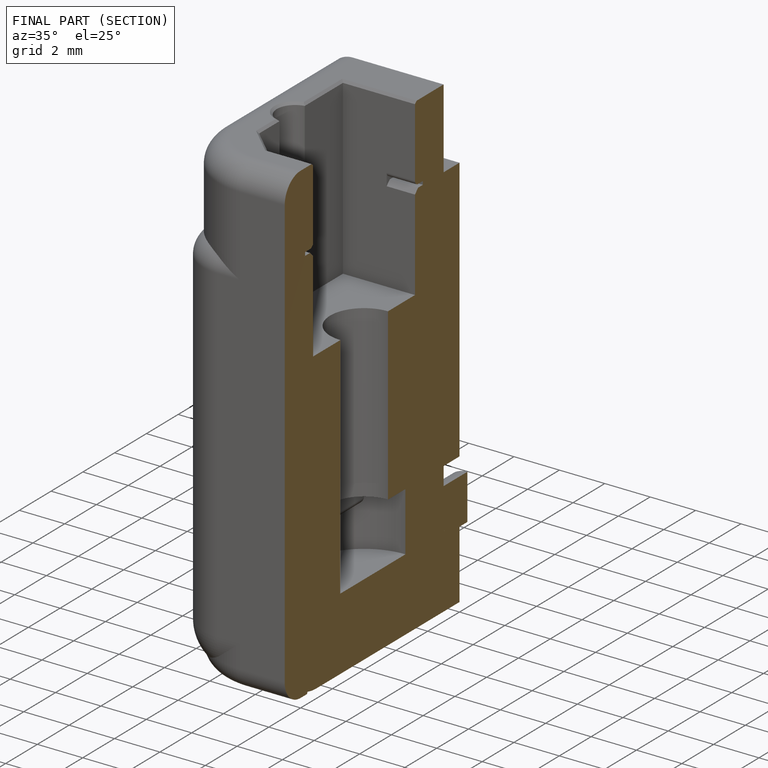
[diagram: finished part — half-section view (interior)]
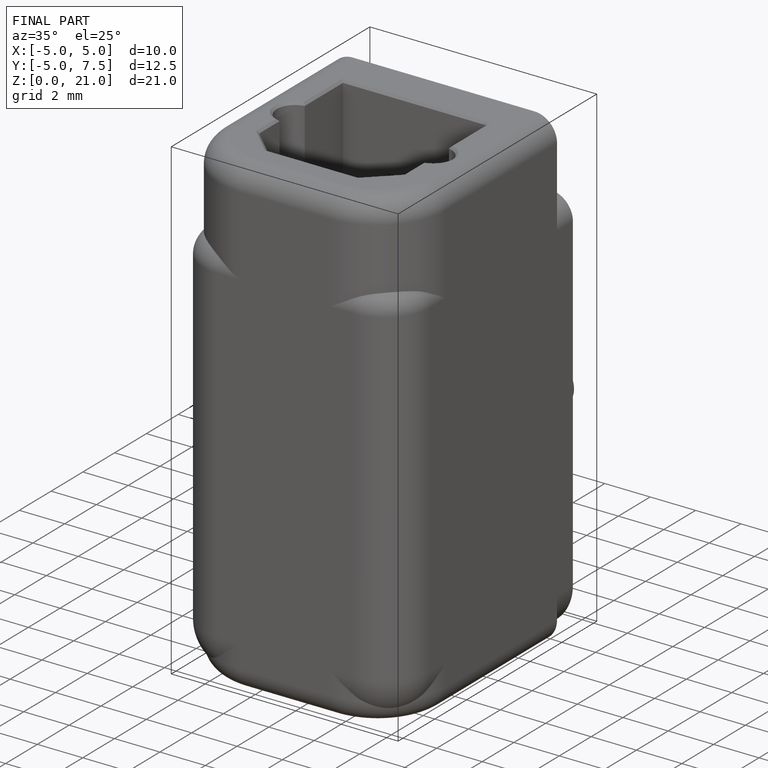
[diagram: finished part — iso view with bounding-box wireframe]
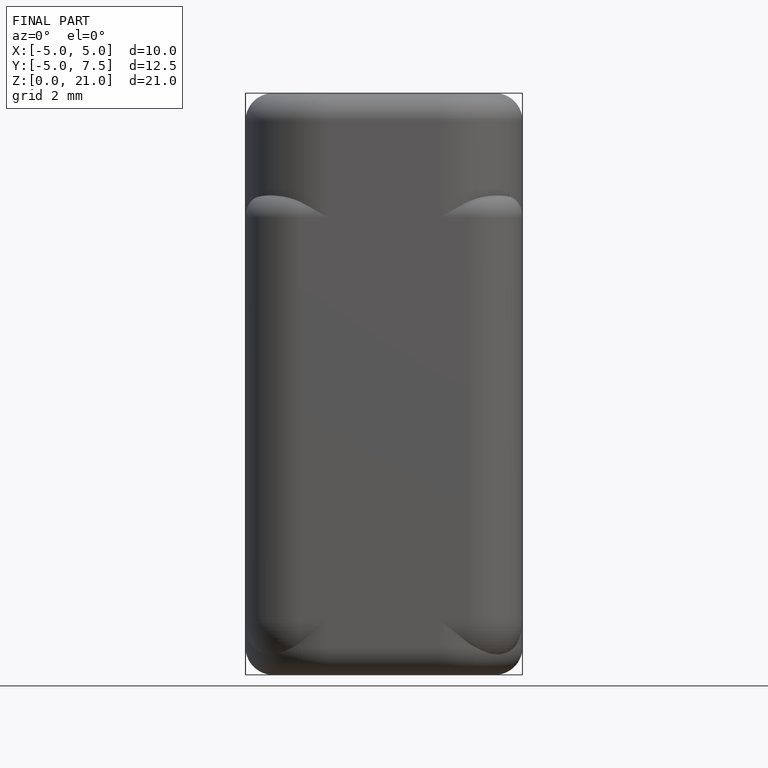
[diagram: finished part — front view with bounding-box wireframe]
